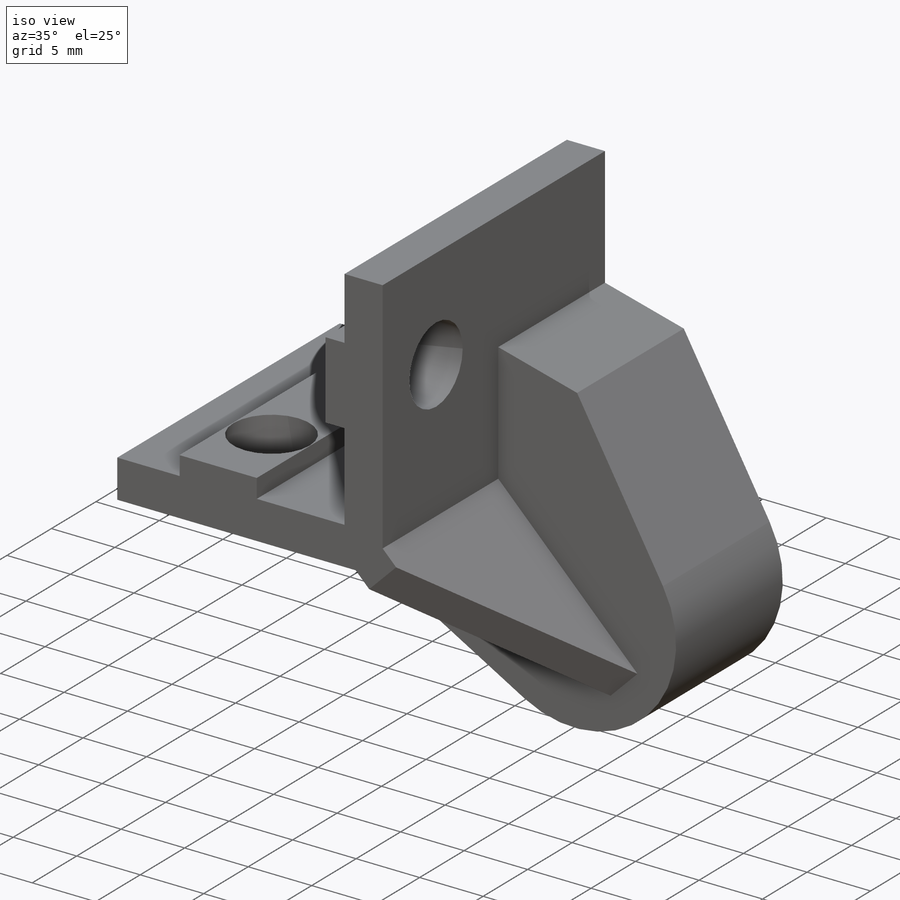
[diagram: iso view]
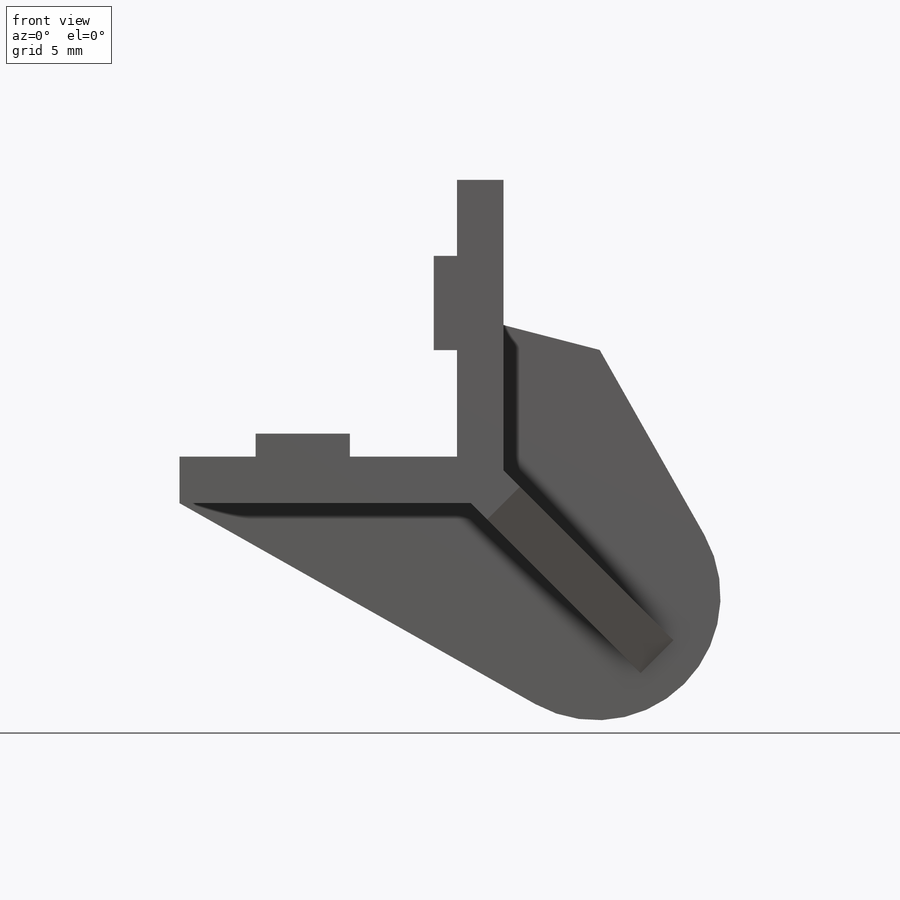
[diagram: front view]
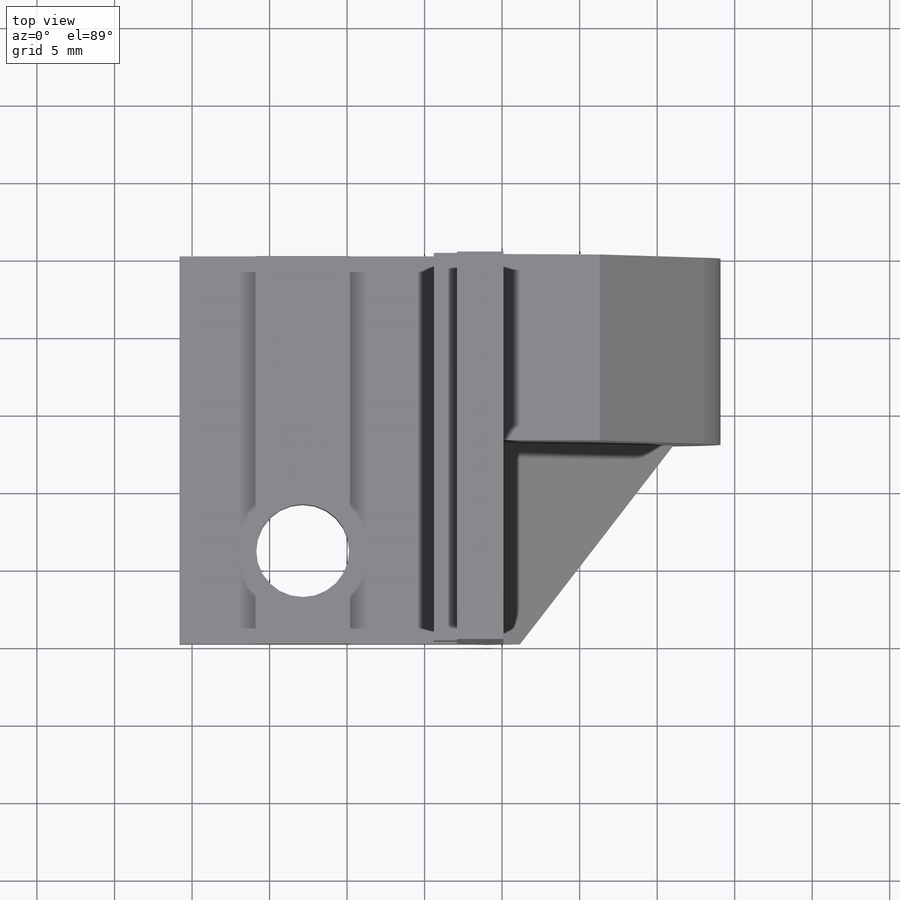
[diagram: top view]
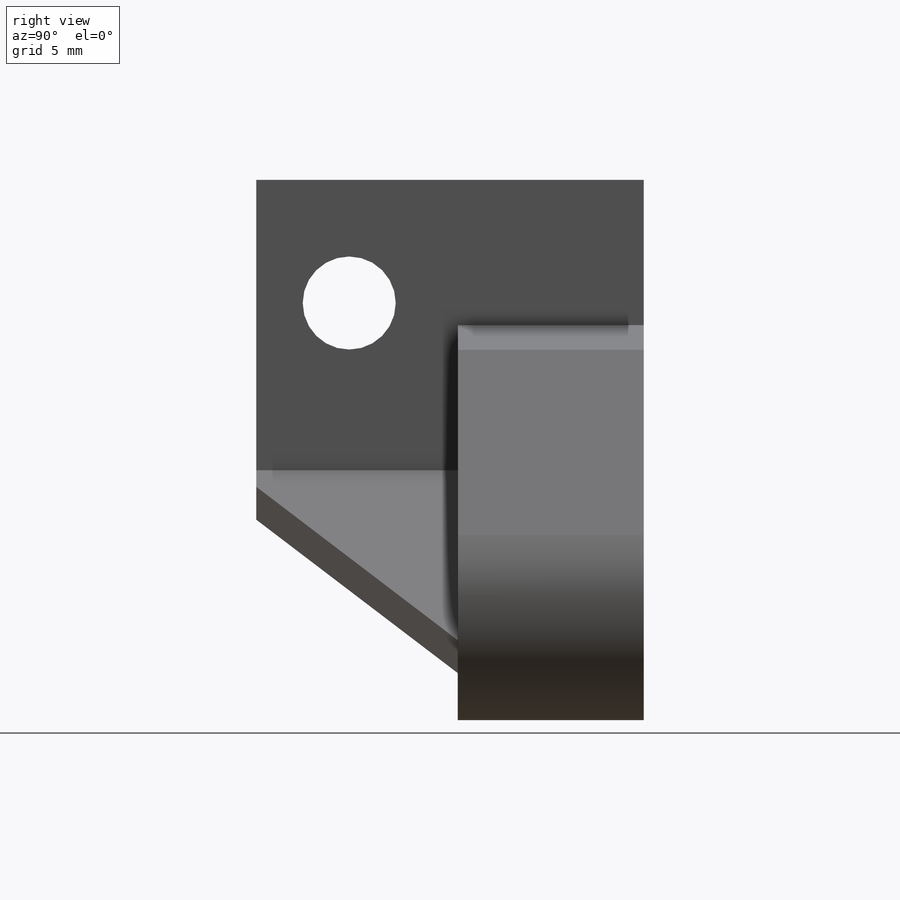
[diagram: right view]
SOLIDWORKS PART (.sldprt)
format: sldprt  version: not decoded by parser v0  size: 308,224 bytes
history: native  units: mm
features: sketch x11, extrude x6, cut_extrude x4, material x1, plane x1 (+12 scaffold rows collapsed)
feature tree (35):
  scaffold x12  (default folders/planes/origin — collapsed)
  material  "ABS"
  sketch  "Sketch1"  dims[c1.D1=~2.304275mm c2.D1=~1.022926deg c2.D2=~1.025219deg c2.D3=~0.085236deg c2.D4=~0.280945deg c2.D5=~0.280944deg c2.D6=~0.348358deg c2.D7=~0.085863deg c2.D8=~0.171887deg c2.D9=~0.143928deg]
  extrude  "Boss-Extrude1"  [1 undecoded]
  sketch  "3DSketch1"
  sketch  "Sketch2"  dims[D1=~0.343775deg D2=~0.343775deg]
  cut_extrude  "Cut-Extrude1"  [1 undecoded]
  sketch  "Sketch3"  dims[D1=~0.343775deg D2=~0.343775deg]
  cut_extrude  "Cut-Extrude2"  [1 undecoded]
  sketch  "Sketch4"  dims[D3=~0.458366deg D1=~0.343775deg D2=~0.343775deg D4=~0.40107deg D5=~0.371363deg]
  extrude  "Boss-Extrude2"  [1 undecoded]
  plane  "Plane1"
  sketch  "Sketch5"  dims[D1=~0.802141deg]
  extrude  "Boss-Extrude4"  [1 undecoded]
  sketch  "Sketch6"  dims[D1=~0.555769deg]
  cut_extrude  "Cut-Extrude3"  [1 undecoded]
  sketch  "Sketch8"  dims[D3=~0.336613deg D1=~0.687549deg D2=~0.916732deg]
  extrude  "Boss-Extrude5"  [1 undecoded]
  extrude  "Boss-Extrude6"  [1 undecoded]
  sketch  "Sketch8<2>"  dims[D1=~0.539081deg D19=~0.708749deg]
  sketch  "Sketch9"
  extrude  "Boss-Extrude7"  [1 undecoded]
  sketch  "Sketch10"  dims[D1=~0.343775deg]
  cut_extrude  "Cut-Extrude4"  [1 undecoded]
decode coverage: 9 of 21 modeling features carry decoded parameters
note: ~ marks probable driven/reference dimensions
note: 10 parameter values undecoded
summary: no parameter record found for 10 features
note: suppression state not decoded; provenance and decode notes live in map.json
